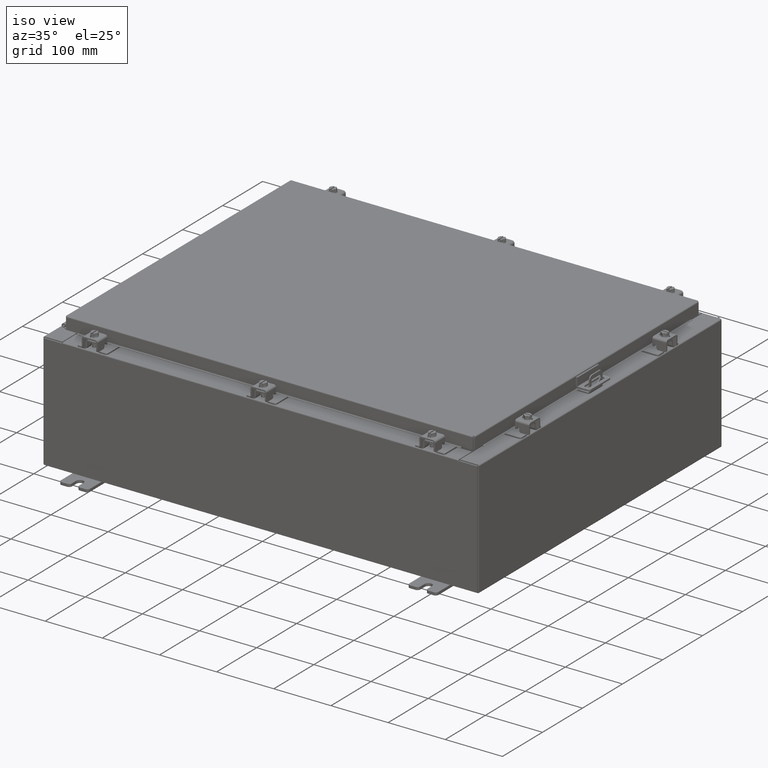
[diagram: clean part render]
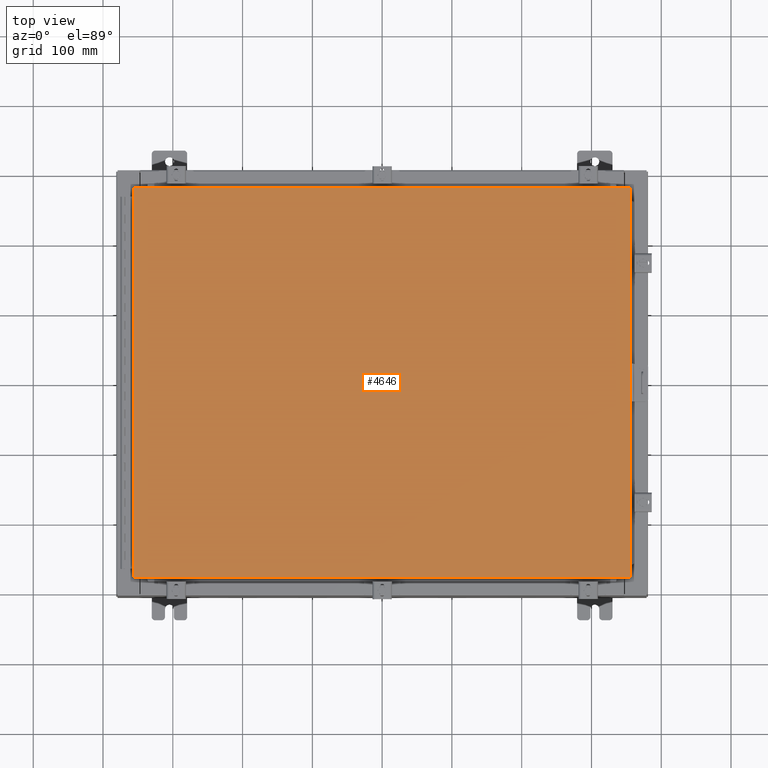
[diagram: tour spotlight — one face highlighted and labeled with its STEP entity id]
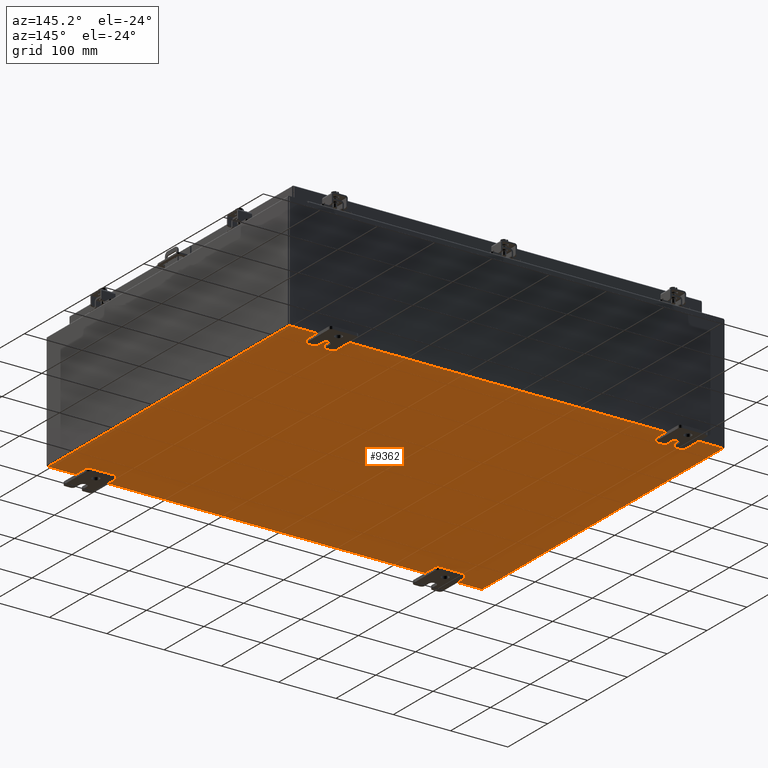
[diagram: tour spotlight — one face highlighted and labeled with its STEP entity id]
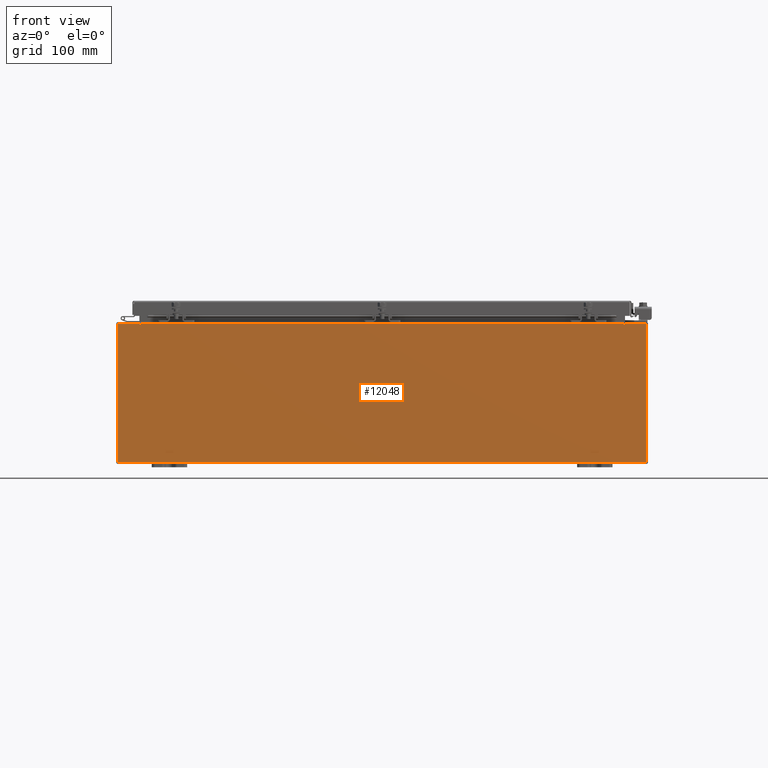
[diagram: tour spotlight — one face highlighted and labeled with its STEP entity id]
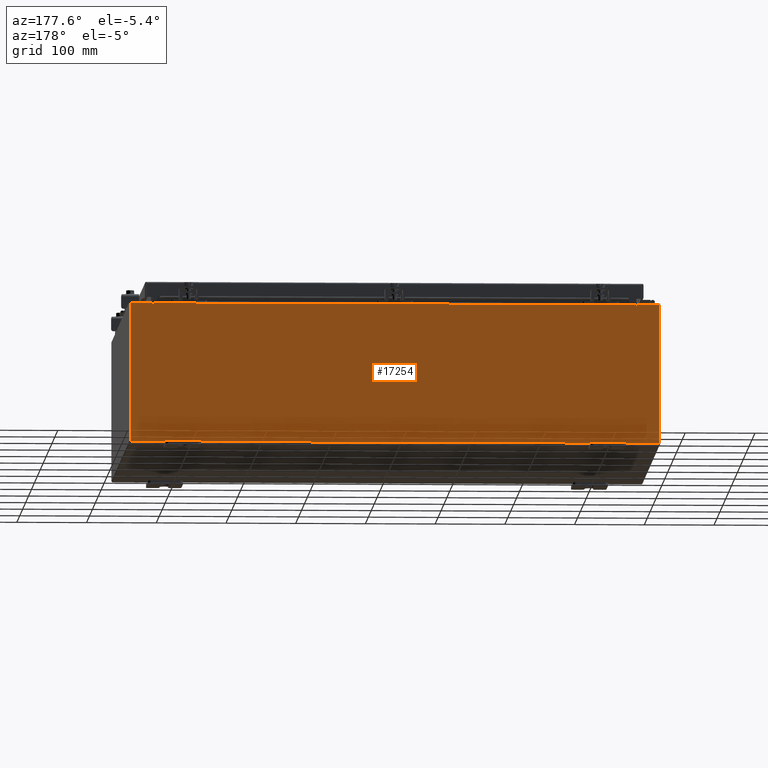
[diagram: tour spotlight — one face highlighted and labeled with its STEP entity id]
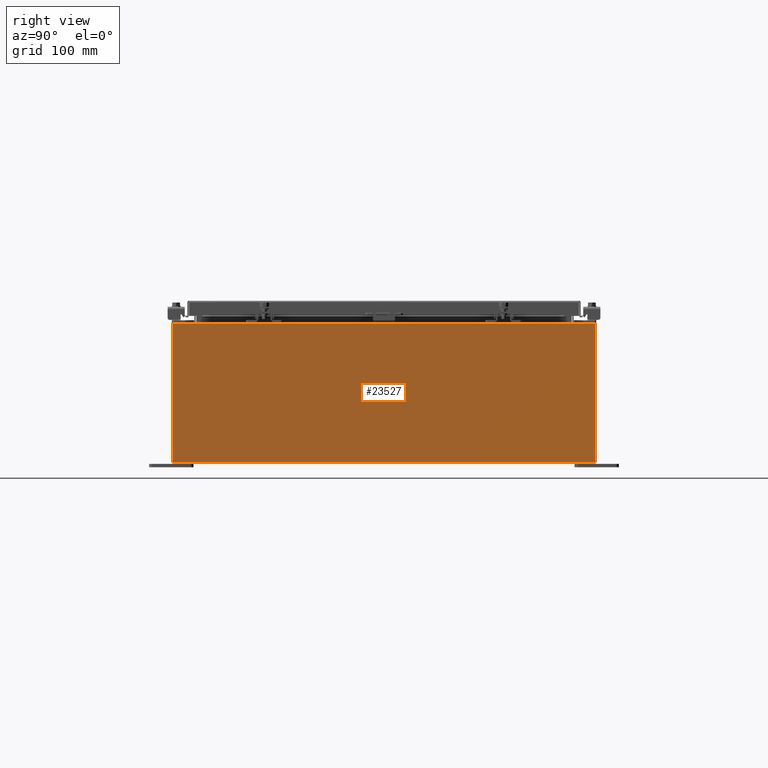
[diagram: tour spotlight — one face highlighted and labeled with its STEP entity id]
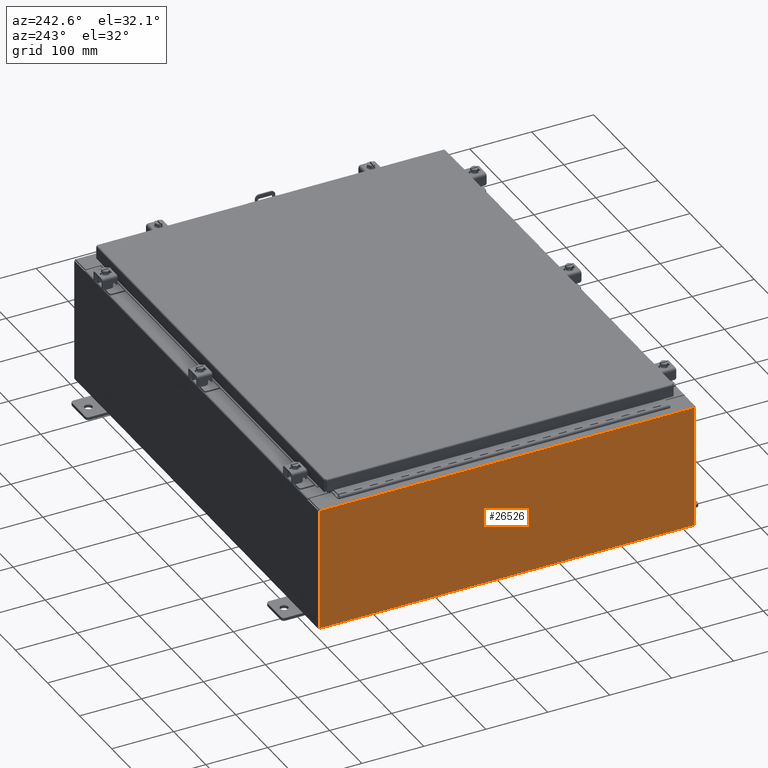
[diagram: tour spotlight — one face highlighted and labeled with its STEP entity id]
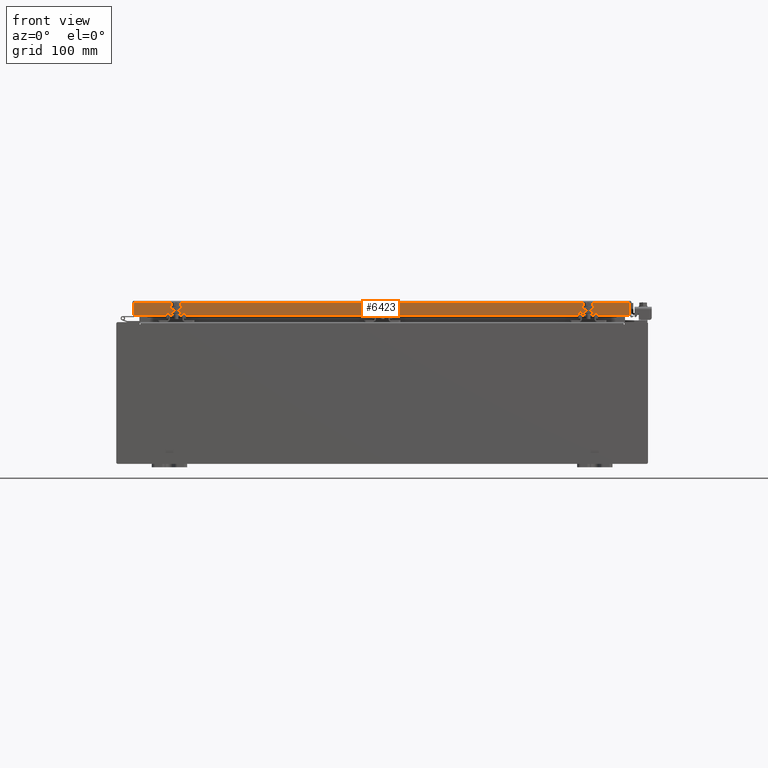
[diagram: tour spotlight — one face highlighted and labeled with its STEP entity id]
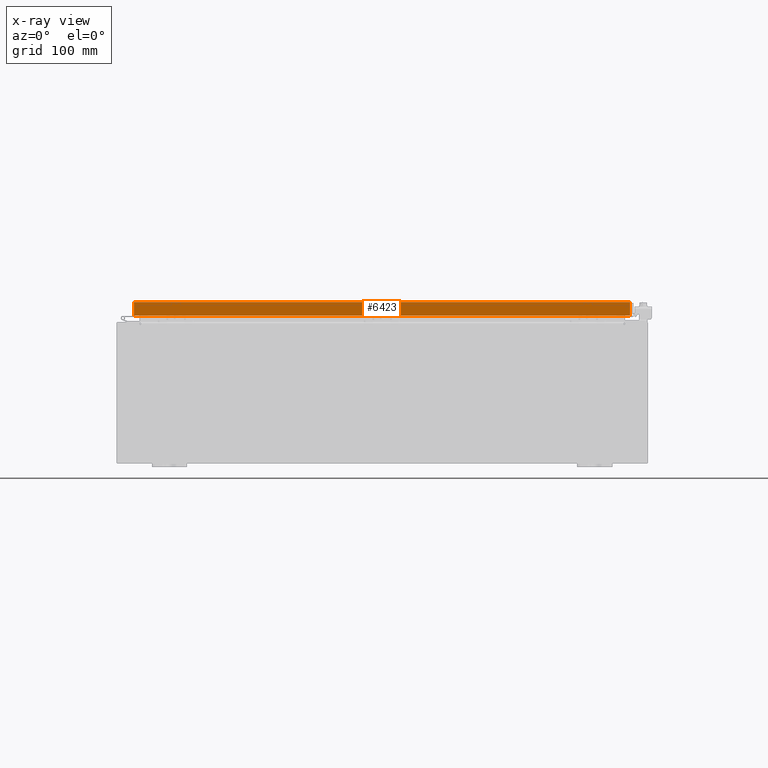
[diagram: x-ray of the same camera — body ghosted, this tour face saturated]
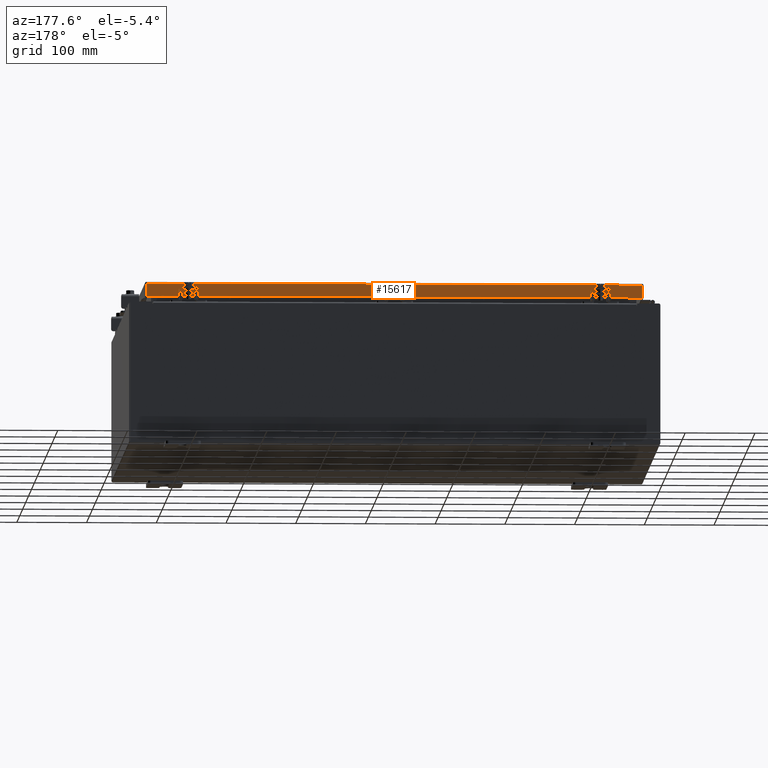
[diagram: tour spotlight — one face highlighted and labeled with its STEP entity id]
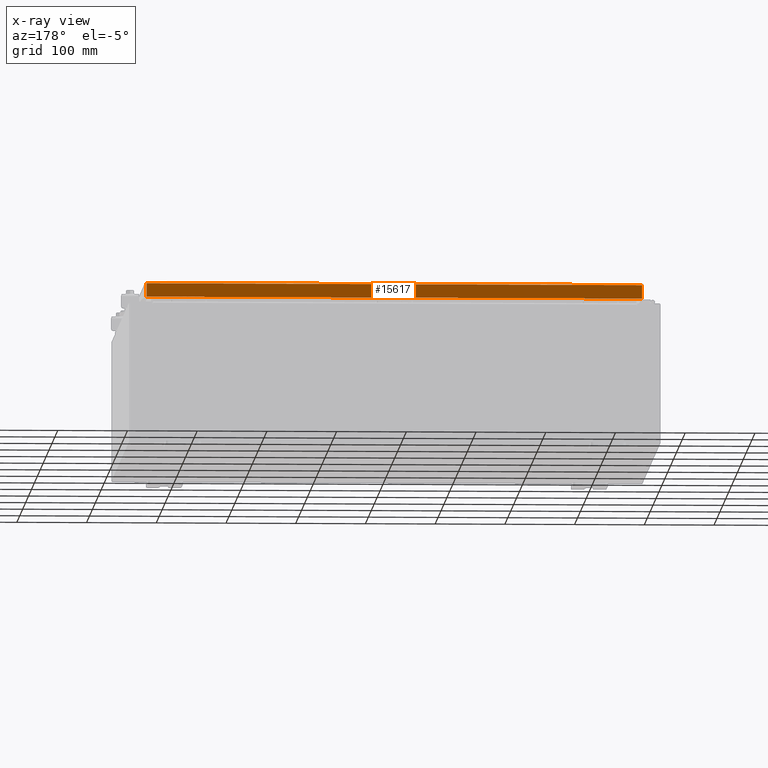
[diagram: x-ray of the same camera — body ghosted, this tour face saturated]
A machine part: a face-by-face anatomy tour. The part has 1943 B-rep faces; the first image is the clean iso view, then the 8 largest visible faces are spotlighted one at a time (largest first), each with its STEP entity span.

Face 1 — top view, entity #4646. In plain terms, the highlighted planar face has unit normal (0, 0, -1).
Definition (entity closure, byte-faithful):
#333 = LINE ( 'NONE', #10665, #6224 ) ;
#2515 = LINE ( 'NONE', #25791, #15040 ) ;
#2560 = EDGE_LOOP ( 'NONE', ( #16162, #28033, #25685, #13990 ) ) ;
#3342 = DIRECTION ( 'NONE',  ( -1.000000000000000000, -0.0000000000000000000, -0.0000000000000000000 ) ) ;
#4220 = VECTOR ( 'NONE', #13143, 39.37007874015748100 ) ;
#4319 = VERTEX_POINT ( 'NONE', #9664 ) ;
#4646 = ADVANCED_FACE ( 'NONE', ( #15226 ), #25495, .F. ) ;
#4715 = EDGE_CURVE ( 'NONE', #15245, #25922, #333, .T. ) ;
#6224 = VECTOR ( 'NONE', #3342, 39.37007874015748100 ) ;
#9664 = CARTESIAN_POINT ( 'NONE',  ( 13.99030000000000100, -11.00630000000000000, -2.048885995248197400E-016 ) ) ;
#10665 = CARTESIAN_POINT ( 'NONE',  ( 13.99030000000000100, 11.00630000000000000, -1.297627796990525000E-015 ) ) ;
#10729 = DIRECTION ( 'NONE',  ( 1.000000000000000000, -0.0000000000000000000, -0.0000000000000000000 ) ) ;
#12890 = VECTOR ( 'NONE', #29164, 39.37007874015748100 ) ;
#13143 = DIRECTION ( 'NONE',  ( 0.0000000000000000000, 1.000000000000000000, 0.0000000000000000000 ) ) ;
#13990 = ORIENTED_EDGE ( 'NONE', *, *, #14964, .T. ) ;
#14117 = CARTESIAN_POINT ( 'NONE',  ( -13.99029999999999800, 11.00630000000000100, -2.048885995248197400E-016 ) ) ;
#14964 = EDGE_CURVE ( 'NONE', #25922, #16980, #19523, .T. ) ;
#15040 = VECTOR ( 'NONE', #10729, 39.37007874015748100 ) ;
#15226 = FACE_OUTER_BOUND ( 'NONE', #2560, .T. ) ;
#15245 = VERTEX_POINT ( 'NONE', #27621 ) ;
#16055 = AXIS2_PLACEMENT_3D ( 'NONE', #27072, #24962, #24844 ) ;
#16162 = ORIENTED_EDGE ( 'NONE', *, *, #17685, .T. ) ;
#16980 = VERTEX_POINT ( 'NONE', #22419 ) ;
#17685 = EDGE_CURVE ( 'NONE', #16980, #4319, #2515, .T. ) ;
#18301 = LINE ( 'NONE', #25766, #4220 ) ;
#19523 = LINE ( 'NONE', #14117, #12890 ) ;
#22419 = CARTESIAN_POINT ( 'NONE',  ( -13.99029999999999600, -11.00630000000000100, -1.340312921891529000E-015 ) ) ;
#24844 = DIRECTION ( 'NONE',  ( -1.000000000000000000, 0.0000000000000000000, -0.0000000000000000000 ) ) ;
#24962 = DIRECTION ( 'NONE',  ( 0.0000000000000000000, 0.0000000000000000000, -1.000000000000000000 ) ) ;
#25495 = PLANE ( 'NONE',  #16055 ) ;
#25685 = ORIENTED_EDGE ( 'NONE', *, *, #4715, .T. ) ;
#25766 = CARTESIAN_POINT ( 'NONE',  ( 13.99030000000000100, -11.00630000000000000, -2.048885995248197400E-016 ) ) ;
#25791 = CARTESIAN_POINT ( 'NONE',  ( -13.99029999999999200, -11.00630000000000100, -1.348849946871729900E-015 ) ) ;
#25922 = VERTEX_POINT ( 'NONE', #30601 ) ;
#27072 = CARTESIAN_POINT ( 'NONE',  ( 0.0000000000000000000, 0.0000000000000000000, 0.0000000000000000000 ) ) ;
#27621 = CARTESIAN_POINT ( 'NONE',  ( 13.99030000000000100, 11.00630000000000000, -1.297627796990525000E-015 ) ) ;
#28033 = ORIENTED_EDGE ( 'NONE', *, *, #30409, .T. ) ;
#29164 = DIRECTION ( 'NONE',  ( 0.0000000000000000000, -1.000000000000000000, 0.0000000000000000000 ) ) ;
#30409 = EDGE_CURVE ( 'NONE', #4319, #15245, #18301, .T. ) ;
#30601 = CARTESIAN_POINT ( 'NONE',  ( -13.99029999999999800, 11.00630000000000100, -2.048885995248197400E-016 ) ) ;

Face 2 — auxiliary view, entity #9362. In plain terms, the highlighted planar face has unit normal (0, 0, -1).
Definition (entity closure, byte-faithful):
#228 = VECTOR ( 'NONE', #2615, 39.37007874015748100 ) ;
#672 = DIRECTION ( 'NONE',  ( -0.0000000000000000000, -1.000000000000000000, -0.0000000000000000000 ) ) ;
#1206 = CARTESIAN_POINT ( 'NONE',  ( -14.91230000000000000, 11.92529999999999800, -0.07470000000000000300 ) ) ;
#1933 = DIRECTION ( 'NONE',  ( -1.000000000000000000, 0.0000000000000000000, -0.0000000000000000000 ) ) ;
#2615 = DIRECTION ( 'NONE',  ( 1.000000000000000000, 0.0000000000000000000, 0.0000000000000000000 ) ) ;
#5251 = EDGE_LOOP ( 'NONE', ( #22593, #8593, #11767, #19054 ) ) ;
#5947 = VECTOR ( 'NONE', #672, 39.37007874015748100 ) ;
#6584 = EDGE_CURVE ( 'NONE', #26088, #21771, #27745, .T. ) ;
#6895 = LINE ( 'NONE', #17584, #228 ) ;
#8593 = ORIENTED_EDGE ( 'NONE', *, *, #22448, .T. ) ;
#9362 = ADVANCED_FACE ( 'NONE', ( #15523 ), #9386, .T. ) ;
#9386 = PLANE ( 'NONE',  #22096 ) ;
#11242 = DIRECTION ( 'NONE',  ( -0.0000000000000000000, 1.000000000000000000, -0.0000000000000000000 ) ) ;
#11767 = ORIENTED_EDGE ( 'NONE', *, *, #6584, .F. ) ;
#13016 = EDGE_CURVE ( 'NONE', #26088, #22585, #24380, .T. ) ;
#13490 = DIRECTION ( 'NONE',  ( -1.000000000000000000, -0.0000000000000000000, -0.0000000000000000000 ) ) ;
#13532 = CARTESIAN_POINT ( 'NONE',  ( -15.00000000000000000, 11.92529999999999800, -0.07470000000000000300 ) ) ;
#15523 = FACE_OUTER_BOUND ( 'NONE', #5251, .T. ) ;
#16903 = DIRECTION ( 'NONE',  ( 0.0000000000000000000, 0.0000000000000000000, -1.000000000000000000 ) ) ;
#17584 = CARTESIAN_POINT ( 'NONE',  ( -15.00000000000000000, -11.92530000000000400, -0.07470000000000000300 ) ) ;
#18162 = CARTESIAN_POINT ( 'NONE',  ( 14.91230000000000000, 11.92529999999999800, -0.07469999999999994700 ) ) ;
#19054 = ORIENTED_EDGE ( 'NONE', *, *, #13016, .T. ) ;
#21231 = CARTESIAN_POINT ( 'NONE',  ( -14.91230000000000000, -11.92530000000000400, -0.07469999999999994700 ) ) ;
#21703 = CARTESIAN_POINT ( 'NONE',  ( 14.91230000000000000, 11.92529999999999600, -0.07469999999999994700 ) ) ;
#21771 = VERTEX_POINT ( 'NONE', #1206 ) ;
#21821 = VECTOR ( 'NONE', #13490, 39.37007874015748100 ) ;
#22096 = AXIS2_PLACEMENT_3D ( 'NONE', #32026, #16903, #1933 ) ;
#22119 = EDGE_CURVE ( 'NONE', #23726, #22585, #6895, .T. ) ;
#22448 = EDGE_CURVE ( 'NONE', #23726, #21771, #31638, .T. ) ;
#22585 = VERTEX_POINT ( 'NONE', #26841 ) ;
#22593 = ORIENTED_EDGE ( 'NONE', *, *, #22119, .F. ) ;
#23726 = VERTEX_POINT ( 'NONE', #24449 ) ;
#24380 = LINE ( 'NONE', #18162, #5947 ) ;
#24449 = CARTESIAN_POINT ( 'NONE',  ( -14.91230000000000000, -11.92530000000000000, -0.07469999999999994700 ) ) ;
#26088 = VERTEX_POINT ( 'NONE', #21703 ) ;
#26841 = CARTESIAN_POINT ( 'NONE',  ( 14.91230000000000000, -11.92530000000000400, -0.07470000000000000300 ) ) ;
#27745 = LINE ( 'NONE', #13532, #21821 ) ;
#30841 = VECTOR ( 'NONE', #11242, 39.37007874015748100 ) ;
#31638 = LINE ( 'NONE', #21231, #30841 ) ;
#32026 = CARTESIAN_POINT ( 'NONE',  ( 0.0000000000000000000, 0.0000000000000000000, -0.07470000000000000300 ) ) ;

Face 3 — front view, entity #12048. In plain terms, the highlighted planar face has unit normal (-0, 1, -0).
Definition (entity closure, byte-faithful):
#814 = VERTEX_POINT ( 'NONE', #13122 ) ;
#927 = EDGE_CURVE ( 'NONE', #19227, #814, #16948, .T. ) ;
#1251 = LINE ( 'NONE', #2341, #20466 ) ;
#1919 = DIRECTION ( 'NONE',  ( 0.0000000000000000000, -0.0000000000000000000, -1.000000000000000000 ) ) ;
#2200 = CARTESIAN_POINT ( 'NONE',  ( 14.92530000000000200, 0.0000000000000000000, -3.925299999999999600 ) ) ;
#2263 = VERTEX_POINT ( 'NONE', #28270 ) ;
#2341 = CARTESIAN_POINT ( 'NONE',  ( 13.63720000000000400, 0.0000000000000000000, 0.0000000000000000000 ) ) ;
#2416 = ORIENTED_EDGE ( 'NONE', *, *, #16329, .T. ) ;
#2781 = EDGE_CURVE ( 'NONE', #12664, #5394, #1251, .T. ) ;
#3201 = FACE_OUTER_BOUND ( 'NONE', #31842, .T. ) ;
#4543 = VECTOR ( 'NONE', #8196, 39.37007874015748100 ) ;
#5394 = VERTEX_POINT ( 'NONE', #6042 ) ;
#5985 = VERTEX_POINT ( 'NONE', #32070 ) ;
#6042 = CARTESIAN_POINT ( 'NONE',  ( 13.63720000000000400, 0.0000000000000000000, 3.912299999999999700 ) ) ;
#6082 = CARTESIAN_POINT ( 'NONE',  ( 13.67455000000000200, 0.0000000000000000000, 3.874949999999999700 ) ) ;
#6448 = LINE ( 'NONE', #11833, #18969 ) ;
#7652 = EDGE_CURVE ( 'NONE', #5985, #8405, #12507, .T. ) ;
#7840 = AXIS2_PLACEMENT_3D ( 'NONE', #9521, #27099, #12046 ) ;
#8196 = DIRECTION ( 'NONE',  ( 1.000000000000000000, 0.0000000000000000000, 0.0000000000000000000 ) ) ;
#8405 = VERTEX_POINT ( 'NONE', #15595 ) ;
#8420 = ORIENTED_EDGE ( 'NONE', *, *, #19274, .F. ) ;
#9165 = EDGE_CURVE ( 'NONE', #12242, #19227, #9275, .T. ) ;
#9275 = LINE ( 'NONE', #31264, #21051 ) ;
#9372 = CARTESIAN_POINT ( 'NONE',  ( 0.0000000000000000000, 0.0000000000000000000, 0.0000000000000000000 ) ) ;
#9521 = CARTESIAN_POINT ( 'NONE',  ( 13.65587500000000200, 0.0000000000000000000, 3.874949999999999700 ) ) ;
#9544 = VECTOR ( 'NONE', #30337, 39.37007874015748100 ) ;
#10242 = CARTESIAN_POINT ( 'NONE',  ( 13.67455000000000400, 0.0000000000000000000, 3.925299999999999600 ) ) ;
#10415 = CARTESIAN_POINT ( 'NONE',  ( -13.63719999999999600, -0.0000000000000000000, 0.0000000000000000000 ) ) ;
#10770 = LINE ( 'NONE', #27913, #24138 ) ;
#10909 = DIRECTION ( 'NONE',  ( -4.340572780400004900E-014, 0.0000000000000000000, -1.000000000000000000 ) ) ;
#11587 = VECTOR ( 'NONE', #10909, 39.37007874015748100 ) ;
#11675 = VERTEX_POINT ( 'NONE', #2200 ) ;
#11833 = CARTESIAN_POINT ( 'NONE',  ( 14.92530000000000200, 0.0000000000000000000, 3.925299999999999600 ) ) ;
#12046 = DIRECTION ( 'NONE',  ( 0.0000000000000000000, 0.0000000000000000000, -1.000000000000000000 ) ) ;
#12048 = ADVANCED_FACE ( 'NONE', ( #3201 ), #21904, .F. ) ;
#12242 = VERTEX_POINT ( 'NONE', #30246 ) ;
#12380 = AXIS2_PLACEMENT_3D ( 'NONE', #30435, #30240, #29926 ) ;
#12507 = CIRCLE ( 'NONE', #12380, 0.01867499999999949400 ) ;
#12664 = VERTEX_POINT ( 'NONE', #24163 ) ;
#12869 = DIRECTION ( 'NONE',  ( 0.0000000000000000000, 0.0000000000000000000, 1.000000000000000000 ) ) ;
#12944 = DIRECTION ( 'NONE',  ( 0.0000000000000000000, 0.0000000000000000000, -1.000000000000000000 ) ) ;
#13113 = VECTOR ( 'NONE', #21860, 39.37007874015748100 ) ;
#13122 = CARTESIAN_POINT ( 'NONE',  ( -13.67454999999999500, 0.0000000000000000000, 3.925299999999999600 ) ) ;
#13185 = LINE ( 'NONE', #28507, #11587 ) ;
#14379 = ORIENTED_EDGE ( 'NONE', *, *, #9165, .T. ) ;
#14388 = DIRECTION ( 'NONE',  ( 0.0000000000000000000, 0.0000000000000000000, -1.000000000000000000 ) ) ;
#14528 = VERTEX_POINT ( 'NONE', #10242 ) ;
#14663 = ORIENTED_EDGE ( 'NONE', *, *, #17100, .F. ) ;
#15595 = CARTESIAN_POINT ( 'NONE',  ( -13.67454999999999500, 0.0000000000000000000, 3.874949999999999700 ) ) ;
#16025 = VERTEX_POINT ( 'NONE', #28646 ) ;
#16329 = EDGE_CURVE ( 'NONE', #11675, #12242, #19442, .T. ) ;
#16579 = EDGE_CURVE ( 'NONE', #14528, #24840, #13185, .T. ) ;
#16885 = DIRECTION ( 'NONE',  ( 0.0000000000000000000, -1.000000000000000000, 0.0000000000000000000 ) ) ;
#16948 = LINE ( 'NONE', #32163, #9544 ) ;
#17100 = EDGE_CURVE ( 'NONE', #8405, #814, #10770, .T. ) ;
#17337 = ORIENTED_EDGE ( 'NONE', *, *, #7652, .F. ) ;
#17533 = EDGE_CURVE ( 'NONE', #16025, #5394, #26477, .T. ) ;
#17537 = EDGE_CURVE ( 'NONE', #2263, #11675, #6448, .T. ) ;
#18651 = VECTOR ( 'NONE', #29955, 39.37007874015748100 ) ;
#18698 = DIRECTION ( 'NONE',  ( -0.0000000000000000000, -0.0000000000000000000, 1.000000000000000000 ) ) ;
#18969 = VECTOR ( 'NONE', #14388, 39.37007874015748100 ) ;
#19227 = VERTEX_POINT ( 'NONE', #22721 ) ;
#19274 = EDGE_CURVE ( 'NONE', #16025, #5985, #31866, .T. ) ;
#19393 = ORIENTED_EDGE ( 'NONE', *, *, #26392, .F. ) ;
#19442 = LINE ( 'NONE', #32458, #18651 ) ;
#20466 = VECTOR ( 'NONE', #32522, 39.37007874015748100 ) ;
#21051 = VECTOR ( 'NONE', #18698, 39.37007874015748100 ) ;
#21211 = ORIENTED_EDGE ( 'NONE', *, *, #16579, .F. ) ;
#21860 = DIRECTION ( 'NONE',  ( 1.000000000000000000, 0.0000000000000000000, 0.0000000000000000000 ) ) ;
#21904 = PLANE ( 'NONE',  #26387 ) ;
#21962 = ORIENTED_EDGE ( 'NONE', *, *, #17533, .T. ) ;
#22272 = EDGE_CURVE ( 'NONE', #14528, #2263, #22982, .T. ) ;
#22721 = CARTESIAN_POINT ( 'NONE',  ( -14.92529999999999800, 0.0000000000000000000, 3.925299999999999600 ) ) ;
#22982 = LINE ( 'NONE', #23197, #4543 ) ;
#23197 = CARTESIAN_POINT ( 'NONE',  ( -14.92529999999999800, 0.0000000000000000000, 3.925299999999999600 ) ) ;
#23267 = ORIENTED_EDGE ( 'NONE', *, *, #22272, .T. ) ;
#23580 = VECTOR ( 'NONE', #12944, 39.37007874015748100 ) ;
#23994 = ORIENTED_EDGE ( 'NONE', *, *, #17537, .T. ) ;
#24138 = VECTOR ( 'NONE', #12869, 39.37007874015748100 ) ;
#24163 = CARTESIAN_POINT ( 'NONE',  ( 13.63720000000000400, 0.0000000000000000000, 3.874949999999999700 ) ) ;
#24840 = VERTEX_POINT ( 'NONE', #6082 ) ;
#26387 = AXIS2_PLACEMENT_3D ( 'NONE', #9372, #16885, #1919 ) ;
#26392 = EDGE_CURVE ( 'NONE', #24840, #12664, #29830, .T. ) ;
#26477 = LINE ( 'NONE', #31845, #13113 ) ;
#26689 = ORIENTED_EDGE ( 'NONE', *, *, #927, .T. ) ;
#27099 = DIRECTION ( 'NONE',  ( -0.0000000000000000000, 1.000000000000000000, -0.0000000000000000000 ) ) ;
#27913 = CARTESIAN_POINT ( 'NONE',  ( -13.67454999999999500, -0.0000000000000000000, 0.0000000000000000000 ) ) ;
#28270 = CARTESIAN_POINT ( 'NONE',  ( 14.92530000000000200, 0.0000000000000000000, 3.925299999999999600 ) ) ;
#28507 = CARTESIAN_POINT ( 'NONE',  ( 13.67454999999983300, -0.0000000000000000000, -5.935537951421816200E-013 ) ) ;
#28646 = CARTESIAN_POINT ( 'NONE',  ( -13.63719999999999600, 1.024442997624098700E-016, 3.912299999999999700 ) ) ;
#29473 = ORIENTED_EDGE ( 'NONE', *, *, #2781, .F. ) ;
#29830 = CIRCLE ( 'NONE', #7840, 0.01867499999999949400 ) ;
#29926 = DIRECTION ( 'NONE',  ( 0.0000000000000000000, 0.0000000000000000000, -1.000000000000000000 ) ) ;
#29955 = DIRECTION ( 'NONE',  ( -1.000000000000000000, -0.0000000000000000000, -0.0000000000000000000 ) ) ;
#30240 = DIRECTION ( 'NONE',  ( -0.0000000000000000000, 1.000000000000000000, -0.0000000000000000000 ) ) ;
#30246 = CARTESIAN_POINT ( 'NONE',  ( -14.92529999999999800, 0.0000000000000000000, -3.925299999999999600 ) ) ;
#30337 = DIRECTION ( 'NONE',  ( 1.000000000000000000, 0.0000000000000000000, 0.0000000000000000000 ) ) ;
#30435 = CARTESIAN_POINT ( 'NONE',  ( -13.65587499999999600, 0.0000000000000000000, 3.874949999999999700 ) ) ;
#31264 = CARTESIAN_POINT ( 'NONE',  ( -14.92529999999999800, 0.0000000000000000000, 3.925299999999999600 ) ) ;
#31842 = EDGE_LOOP ( 'NONE', ( #14663, #17337, #8420, #21962, #29473, #19393, #21211, #23267, #23994, #2416, #14379, #26689 ) ) ;
#31845 = CARTESIAN_POINT ( 'NONE',  ( -13.63719999999999800, 1.024442997624098700E-016, 3.912299999999999700 ) ) ;
#31866 = LINE ( 'NONE', #10415, #23580 ) ;
#32070 = CARTESIAN_POINT ( 'NONE',  ( -13.63719999999999600, -0.0000000000000000000, 3.874949999999999700 ) ) ;
#32163 = CARTESIAN_POINT ( 'NONE',  ( -14.92529999999999800, 0.0000000000000000000, 3.925299999999999600 ) ) ;
#32458 = CARTESIAN_POINT ( 'NONE',  ( -14.92529999999999800, 0.0000000000000000000, -3.925299999999999600 ) ) ;
#32522 = DIRECTION ( 'NONE',  ( 0.0000000000000000000, 0.0000000000000000000, 1.000000000000000000 ) ) ;

Face 4 — auxiliary view, entity #17254. In plain terms, the highlighted planar face has unit normal (0, -1, 0).
Definition (entity closure, byte-faithful):
#1530 = LINE ( 'NONE', #12909, #11361 ) ;
#2064 = ORIENTED_EDGE ( 'NONE', *, *, #26640, .T. ) ;
#2472 = DIRECTION ( 'NONE',  ( -1.000000000000000000, -0.0000000000000000000, -0.0000000000000000000 ) ) ;
#2600 = EDGE_CURVE ( 'NONE', #27014, #2655, #25980, .T. ) ;
#2655 = VERTEX_POINT ( 'NONE', #20212 ) ;
#3397 = CARTESIAN_POINT ( 'NONE',  ( 13.63720000000000400, 0.0000000000000000000, 0.0000000000000000000 ) ) ;
#3432 = DIRECTION ( 'NONE',  ( 0.0000000000000000000, -1.000000000000000000, 0.0000000000000000000 ) ) ;
#3822 = VERTEX_POINT ( 'NONE', #30225 ) ;
#3849 = VECTOR ( 'NONE', #31290, 39.37007874015748100 ) ;
#3901 = LINE ( 'NONE', #10347, #17178 ) ;
#4073 = VERTEX_POINT ( 'NONE', #26696 ) ;
#4563 = VECTOR ( 'NONE', #24373, 39.37007874015748100 ) ;
#5375 = EDGE_CURVE ( 'NONE', #3822, #22118, #10484, .T. ) ;
#5415 = DIRECTION ( 'NONE',  ( 0.0000000000000000000, 0.0000000000000000000, -1.000000000000000000 ) ) ;
#5634 = VERTEX_POINT ( 'NONE', #32386 ) ;
#5680 = EDGE_CURVE ( 'NONE', #28833, #4073, #21081, .T. ) ;
#5797 = CARTESIAN_POINT ( 'NONE',  ( -13.63719999999999600, -0.0000000000000000000, 0.0000000000000000000 ) ) ;
#5967 = VECTOR ( 'NONE', #31006, 39.37007874015748100 ) ;
#6032 = CARTESIAN_POINT ( 'NONE',  ( -13.63719999999999600, 1.024442997624098700E-016, 3.912299999999999700 ) ) ;
#6238 = ORIENTED_EDGE ( 'NONE', *, *, #8088, .F. ) ;
#6724 = VERTEX_POINT ( 'NONE', #9431 ) ;
#6837 = CARTESIAN_POINT ( 'NONE',  ( -13.63719999999999800, 1.024442997624098700E-016, 3.912299999999999700 ) ) ;
#6854 = CARTESIAN_POINT ( 'NONE',  ( 13.63720000000000400, 0.0000000000000000000, 3.874949999999999700 ) ) ;
#7354 = EDGE_CURVE ( 'NONE', #22118, #27014, #29668, .T. ) ;
#7526 = VECTOR ( 'NONE', #2472, 39.37007874015748100 ) ;
#7868 = DIRECTION ( 'NONE',  ( 1.000000000000000000, 0.0000000000000000000, 0.0000000000000000000 ) ) ;
#7899 = VERTEX_POINT ( 'NONE', #18019 ) ;
#8088 = EDGE_CURVE ( 'NONE', #13630, #7899, #26646, .T. ) ;
#8369 = PLANE ( 'NONE',  #23961 ) ;
#9376 = CARTESIAN_POINT ( 'NONE',  ( -13.65587499999999600, 0.0000000000000000000, 3.874949999999999700 ) ) ;
#9431 = CARTESIAN_POINT ( 'NONE',  ( -14.92529999999999800, 0.0000000000000000000, -3.925299999999999600 ) ) ;
#9562 = EDGE_CURVE ( 'NONE', #15014, #15130, #18240, .T. ) ;
#10068 = CARTESIAN_POINT ( 'NONE',  ( 13.67455000000000200, 0.0000000000000000000, 3.874949999999999700 ) ) ;
#10347 = CARTESIAN_POINT ( 'NONE',  ( -14.92529999999999800, 0.0000000000000000000, 3.925299999999999600 ) ) ;
#10484 = LINE ( 'NONE', #26341, #3849 ) ;
#10920 = CARTESIAN_POINT ( 'NONE',  ( -14.92529999999999800, 0.0000000000000000000, 3.925299999999999600 ) ) ;
#11306 = AXIS2_PLACEMENT_3D ( 'NONE', #17340, #17232, #16894 ) ;
#11361 = VECTOR ( 'NONE', #7868, 39.37007874015748100 ) ;
#11774 = CARTESIAN_POINT ( 'NONE',  ( 14.92530000000000200, 0.0000000000000000000, 3.925299999999999600 ) ) ;
#11902 = DIRECTION ( 'NONE',  ( 0.0000000000000000000, 0.0000000000000000000, -1.000000000000000000 ) ) ;
#12008 = LINE ( 'NONE', #6837, #4563 ) ;
#12842 = AXIS2_PLACEMENT_3D ( 'NONE', #9376, #26968, #11902 ) ;
#12909 = CARTESIAN_POINT ( 'NONE',  ( -14.92529999999999800, 0.0000000000000000000, 3.925299999999999600 ) ) ;
#13139 = ORIENTED_EDGE ( 'NONE', *, *, #5375, .F. ) ;
#13530 = ORIENTED_EDGE ( 'NONE', *, *, #31097, .T. ) ;
#13630 = VERTEX_POINT ( 'NONE', #6032 ) ;
#13916 = ORIENTED_EDGE ( 'NONE', *, *, #30498, .T. ) ;
#14100 = ORIENTED_EDGE ( 'NONE', *, *, #14540, .T. ) ;
#14205 = LINE ( 'NONE', #20009, #7526 ) ;
#14540 = EDGE_CURVE ( 'NONE', #3822, #15014, #3901, .T. ) ;
#15014 = VERTEX_POINT ( 'NONE', #11774 ) ;
#15130 = VERTEX_POINT ( 'NONE', #32318 ) ;
#16894 = DIRECTION ( 'NONE',  ( 0.0000000000000000000, 0.0000000000000000000, -1.000000000000000000 ) ) ;
#17178 = VECTOR ( 'NONE', #27939, 39.37007874015748100 ) ;
#17232 = DIRECTION ( 'NONE',  ( -0.0000000000000000000, 1.000000000000000000, -0.0000000000000000000 ) ) ;
#17254 = ADVANCED_FACE ( 'NONE', ( #26096 ), #8369, .F. ) ;
#17340 = CARTESIAN_POINT ( 'NONE',  ( 13.65587500000000200, 0.0000000000000000000, 3.874949999999999700 ) ) ;
#18019 = CARTESIAN_POINT ( 'NONE',  ( -13.63719999999999600, -0.0000000000000000000, 3.874949999999999700 ) ) ;
#18240 = LINE ( 'NONE', #19907, #30103 ) ;
#18409 = CARTESIAN_POINT ( 'NONE',  ( 0.0000000000000000000, 0.0000000000000000000, 0.0000000000000000000 ) ) ;
#18466 = DIRECTION ( 'NONE',  ( -0.0000000000000000000, -0.0000000000000000000, 1.000000000000000000 ) ) ;
#19907 = CARTESIAN_POINT ( 'NONE',  ( 14.92530000000000200, 0.0000000000000000000, 3.925299999999999600 ) ) ;
#20009 = CARTESIAN_POINT ( 'NONE',  ( -14.92529999999999800, 0.0000000000000000000, -3.925299999999999600 ) ) ;
#20147 = ORIENTED_EDGE ( 'NONE', *, *, #2600, .F. ) ;
#20212 = CARTESIAN_POINT ( 'NONE',  ( 13.63720000000000400, 0.0000000000000000000, 3.912299999999999700 ) ) ;
#20483 = CIRCLE ( 'NONE', #12842, 0.01867499999999949400 ) ;
#20854 = EDGE_LOOP ( 'NONE', ( #30433, #24570, #6238, #13530, #20147, #27202, #13139, #14100, #26688, #27341, #13916, #2064 ) ) ;
#20969 = DIRECTION ( 'NONE',  ( 0.0000000000000000000, -0.0000000000000000000, -1.000000000000000000 ) ) ;
#21081 = LINE ( 'NONE', #27400, #26994 ) ;
#21884 = VECTOR ( 'NONE', #18466, 39.37007874015748100 ) ;
#22118 = VERTEX_POINT ( 'NONE', #10068 ) ;
#22662 = DIRECTION ( 'NONE',  ( 0.0000000000000000000, 0.0000000000000000000, -1.000000000000000000 ) ) ;
#23961 = AXIS2_PLACEMENT_3D ( 'NONE', #18409, #3432, #20969 ) ;
#24339 = EDGE_CURVE ( 'NONE', #7899, #28833, #20483, .T. ) ;
#24373 = DIRECTION ( 'NONE',  ( 1.000000000000000000, 0.0000000000000000000, 0.0000000000000000000 ) ) ;
#24544 = EDGE_CURVE ( 'NONE', #15130, #6724, #14205, .T. ) ;
#24570 = ORIENTED_EDGE ( 'NONE', *, *, #24339, .F. ) ;
#25841 = VECTOR ( 'NONE', #5415, 39.37007874015748100 ) ;
#25980 = LINE ( 'NONE', #3397, #5967 ) ;
#26096 = FACE_OUTER_BOUND ( 'NONE', #20854, .T. ) ;
#26341 = CARTESIAN_POINT ( 'NONE',  ( 13.67454999999983300, -0.0000000000000000000, -5.935537951421816200E-013 ) ) ;
#26358 = DIRECTION ( 'NONE',  ( 0.0000000000000000000, 0.0000000000000000000, 1.000000000000000000 ) ) ;
#26640 = EDGE_CURVE ( 'NONE', #5634, #4073, #1530, .T. ) ;
#26646 = LINE ( 'NONE', #5797, #25841 ) ;
#26688 = ORIENTED_EDGE ( 'NONE', *, *, #9562, .T. ) ;
#26696 = CARTESIAN_POINT ( 'NONE',  ( -13.67454999999999500, 0.0000000000000000000, 3.925299999999999600 ) ) ;
#26968 = DIRECTION ( 'NONE',  ( -0.0000000000000000000, 1.000000000000000000, -0.0000000000000000000 ) ) ;
#26994 = VECTOR ( 'NONE', #26358, 39.37007874015748100 ) ;
#27014 = VERTEX_POINT ( 'NONE', #6854 ) ;
#27202 = ORIENTED_EDGE ( 'NONE', *, *, #7354, .F. ) ;
#27341 = ORIENTED_EDGE ( 'NONE', *, *, #24544, .T. ) ;
#27400 = CARTESIAN_POINT ( 'NONE',  ( -13.67454999999999500, -0.0000000000000000000, 0.0000000000000000000 ) ) ;
#27939 = DIRECTION ( 'NONE',  ( 1.000000000000000000, 0.0000000000000000000, 0.0000000000000000000 ) ) ;
#28568 = LINE ( 'NONE', #10920, #21884 ) ;
#28833 = VERTEX_POINT ( 'NONE', #32217 ) ;
#29668 = CIRCLE ( 'NONE', #11306, 0.01867499999999949400 ) ;
#30103 = VECTOR ( 'NONE', #22662, 39.37007874015748100 ) ;
#30225 = CARTESIAN_POINT ( 'NONE',  ( 13.67455000000000400, 0.0000000000000000000, 3.925299999999999600 ) ) ;
#30433 = ORIENTED_EDGE ( 'NONE', *, *, #5680, .F. ) ;
#30498 = EDGE_CURVE ( 'NONE', #6724, #5634, #28568, .T. ) ;
#31006 = DIRECTION ( 'NONE',  ( 0.0000000000000000000, 0.0000000000000000000, 1.000000000000000000 ) ) ;
#31097 = EDGE_CURVE ( 'NONE', #13630, #2655, #12008, .T. ) ;
#31290 = DIRECTION ( 'NONE',  ( -4.340572780400004900E-014, 0.0000000000000000000, -1.000000000000000000 ) ) ;
#32217 = CARTESIAN_POINT ( 'NONE',  ( -13.67454999999999500, 0.0000000000000000000, 3.874949999999999700 ) ) ;
#32318 = CARTESIAN_POINT ( 'NONE',  ( 14.92530000000000200, 0.0000000000000000000, -3.925299999999999600 ) ) ;
#32386 = CARTESIAN_POINT ( 'NONE',  ( -14.92529999999999800, 0.0000000000000000000, 3.925299999999999600 ) ) ;

Face 5 — right view, entity #23527. In plain terms, the highlighted planar face has unit normal (-1, 0, 0).
Definition (entity closure, byte-faithful):
#526 = VECTOR ( 'NONE', #16536, 39.37007874015748100 ) ;
#799 = LINE ( 'NONE', #22357, #11768 ) ;
#1785 = EDGE_CURVE ( 'NONE', #20191, #10632, #20531, .T. ) ;
#1936 = VECTOR ( 'NONE', #8677, 39.37007874015748100 ) ;
#2747 = ORIENTED_EDGE ( 'NONE', *, *, #1785, .T. ) ;
#4115 = ORIENTED_EDGE ( 'NONE', *, *, #4146, .F. ) ;
#4146 = EDGE_CURVE ( 'NONE', #20191, #16304, #28663, .T. ) ;
#4785 = VECTOR ( 'NONE', #7066, 39.37007874015748100 ) ;
#4792 = DIRECTION ( 'NONE',  ( -0.0000000000000000000, -1.000000000000000000, -0.0000000000000000000 ) ) ;
#7066 = DIRECTION ( 'NONE',  ( -3.584876173029202900E-015, 0.0000000000000000000, -1.000000000000000000 ) ) ;
#8677 = DIRECTION ( 'NONE',  ( -0.0000000000000000000, -1.000000000000000000, -0.0000000000000000000 ) ) ;
#8725 = CARTESIAN_POINT ( 'NONE',  ( 15.00000000000000000, 11.92529999999999600, 0.01299999999999984700 ) ) ;
#9937 = CARTESIAN_POINT ( 'NONE',  ( 15.00000000000003200, 11.92529999999999600, 7.837599999999992100 ) ) ;
#10365 = EDGE_LOOP ( 'NONE', ( #27271, #23259, #4115, #2747 ) ) ;
#10632 = VERTEX_POINT ( 'NONE', #9937 ) ;
#11292 = DIRECTION ( 'NONE',  ( 3.584876173029202900E-015, 0.0000000000000000000, 1.000000000000000000 ) ) ;
#11525 = CARTESIAN_POINT ( 'NONE',  ( 15.00000000000000000, -11.92530000000000400, 0.01299999999999984700 ) ) ;
#11768 = VECTOR ( 'NONE', #4792, 39.37007874015748100 ) ;
#16196 = CARTESIAN_POINT ( 'NONE',  ( 15.00000000000000000, 0.0000000000000000000, -5.403395625144962700E-014 ) ) ;
#16304 = VERTEX_POINT ( 'NONE', #19920 ) ;
#16536 = DIRECTION ( 'NONE',  ( 3.584876173029202900E-015, 0.0000000000000000000, 1.000000000000000000 ) ) ;
#18725 = PLANE ( 'NONE',  #19726 ) ;
#19726 = AXIS2_PLACEMENT_3D ( 'NONE', #16196, #26342, #11292 ) ;
#19920 = CARTESIAN_POINT ( 'NONE',  ( 15.00000000000000000, -11.92530000000000400, 0.01299999999999983600 ) ) ;
#20191 = VERTEX_POINT ( 'NONE', #8725 ) ;
#20531 = LINE ( 'NONE', #24201, #526 ) ;
#22129 = CARTESIAN_POINT ( 'NONE',  ( 15.00000000000000000, -11.92530000000000400, -5.403395625144962700E-014 ) ) ;
#22357 = CARTESIAN_POINT ( 'NONE',  ( 15.00000000000003200, 11.92529999999999800, 7.837599999999992100 ) ) ;
#23259 = ORIENTED_EDGE ( 'NONE', *, *, #24385, .T. ) ;
#23527 = ADVANCED_FACE ( 'NONE', ( #27655 ), #18725, .F. ) ;
#24166 = VERTEX_POINT ( 'NONE', #28628 ) ;
#24201 = CARTESIAN_POINT ( 'NONE',  ( 15.00000000000000000, 11.92529999999999800, -5.403395625144962700E-014 ) ) ;
#24385 = EDGE_CURVE ( 'NONE', #24166, #16304, #24795, .T. ) ;
#24795 = LINE ( 'NONE', #22129, #4785 ) ;
#26342 = DIRECTION ( 'NONE',  ( -1.000000000000000000, 0.0000000000000000000, 3.584876173029202900E-015 ) ) ;
#27271 = ORIENTED_EDGE ( 'NONE', *, *, #28396, .T. ) ;
#27655 = FACE_OUTER_BOUND ( 'NONE', #10365, .T. ) ;
#28396 = EDGE_CURVE ( 'NONE', #10632, #24166, #799, .T. ) ;
#28628 = CARTESIAN_POINT ( 'NONE',  ( 15.00000000000002800, -11.92530000000000400, 7.837599999999998300 ) ) ;
#28663 = LINE ( 'NONE', #11525, #1936 ) ;

Face 6 — auxiliary view, entity #26526. In plain terms, the highlighted planar face has unit normal (1, 0, 0).
Definition (entity closure, byte-faithful):
#994 = EDGE_LOOP ( 'NONE', ( #16922, #14734, #2375, #6840 ) ) ;
#2375 = ORIENTED_EDGE ( 'NONE', *, *, #28823, .F. ) ;
#2438 = VERTEX_POINT ( 'NONE', #14541 ) ;
#3601 = EDGE_CURVE ( 'NONE', #2438, #31139, #30271, .T. ) ;
#5027 = DIRECTION ( 'NONE',  ( 1.000000000000000000, 0.0000000000000000000, 3.584876173029202900E-015 ) ) ;
#5881 = VECTOR ( 'NONE', #6637, 39.37007874015748100 ) ;
#6637 = DIRECTION ( 'NONE',  ( -0.0000000000000000000, 1.000000000000000000, -0.0000000000000000000 ) ) ;
#6840 = ORIENTED_EDGE ( 'NONE', *, *, #3601, .T. ) ;
#7436 = PLANE ( 'NONE',  #28051 ) ;
#7695 = CARTESIAN_POINT ( 'NONE',  ( -15.00000000000000000, 11.92529999999999800, 0.01299999999999983600 ) ) ;
#9887 = EDGE_CURVE ( 'NONE', #32061, #23311, #15485, .T. ) ;
#10146 = CARTESIAN_POINT ( 'NONE',  ( -15.00000000000000000, -11.92530000000000400, -5.403395625144962700E-014 ) ) ;
#10373 = DIRECTION ( 'NONE',  ( -3.584876173029202900E-015, 0.0000000000000000000, 1.000000000000000000 ) ) ;
#11595 = DIRECTION ( 'NONE',  ( 0.0000000000000000000, 1.000000000000000000, 0.0000000000000000000 ) ) ;
#12536 = LINE ( 'NONE', #19110, #5881 ) ;
#14541 = CARTESIAN_POINT ( 'NONE',  ( -15.00000000000000000, -11.92530000000000000, 0.01299999999999984700 ) ) ;
#14709 = VECTOR ( 'NONE', #31228, 39.37007874015748100 ) ;
#14734 = ORIENTED_EDGE ( 'NONE', *, *, #9887, .T. ) ;
#15485 = LINE ( 'NONE', #21331, #14709 ) ;
#16059 = VECTOR ( 'NONE', #10373, 39.37007874015748100 ) ;
#16701 = CARTESIAN_POINT ( 'NONE',  ( -15.00000000000002800, -11.92530000000000400, 7.837599999999999200 ) ) ;
#16922 = ORIENTED_EDGE ( 'NONE', *, *, #28245, .T. ) ;
#19110 = CARTESIAN_POINT ( 'NONE',  ( -15.00000000000000000, 11.92529999999999800, 0.01299999999999984700 ) ) ;
#20750 = FACE_OUTER_BOUND ( 'NONE', #994, .T. ) ;
#21331 = CARTESIAN_POINT ( 'NONE',  ( -15.00000000000000000, 11.92529999999999800, -5.403395625144962700E-014 ) ) ;
#22578 = DIRECTION ( 'NONE',  ( 3.584876173029202900E-015, 0.0000000000000000000, -1.000000000000000000 ) ) ;
#23165 = LINE ( 'NONE', #16701, #29898 ) ;
#23311 = VERTEX_POINT ( 'NONE', #7695 ) ;
#24605 = CARTESIAN_POINT ( 'NONE',  ( -15.00000000000002800, -11.92530000000000000, 7.837599999999999200 ) ) ;
#24994 = CARTESIAN_POINT ( 'NONE',  ( -15.00000000000000000, 0.0000000000000000000, -5.403395625144962700E-014 ) ) ;
#26526 = ADVANCED_FACE ( 'NONE', ( #20750 ), #7436, .F. ) ;
#28051 = AXIS2_PLACEMENT_3D ( 'NONE', #24994, #5027, #22578 ) ;
#28245 = EDGE_CURVE ( 'NONE', #31139, #32061, #23165, .T. ) ;
#28823 = EDGE_CURVE ( 'NONE', #2438, #23311, #12536, .T. ) ;
#29850 = CARTESIAN_POINT ( 'NONE',  ( -15.00000000000002800, 11.92529999999999800, 7.837599999999999200 ) ) ;
#29898 = VECTOR ( 'NONE', #11595, 39.37007874015748100 ) ;
#30271 = LINE ( 'NONE', #10146, #16059 ) ;
#31139 = VERTEX_POINT ( 'NONE', #24605 ) ;
#31228 = DIRECTION ( 'NONE',  ( 3.584876173029202900E-015, 0.0000000000000000000, -1.000000000000000000 ) ) ;
#32061 = VERTEX_POINT ( 'NONE', #29850 ) ;

Face 7 — front view, entity #6423. An x-ray twin of the same camera follows (body ghosted, this face saturated) — the face is partly hidden behind the body. In plain terms, the highlighted planar face has unit normal (-0, 1, -0).
Definition (entity closure, byte-faithful):
#1064 = CARTESIAN_POINT ( 'NONE',  ( -13.98915786437626700, -11.09400000000000100, 6.280614401424472000E-014 ) ) ;
#1550 = CARTESIAN_POINT ( 'NONE',  ( 13.98915786437627100, -11.09400000000000700, -0.8499999999999996400 ) ) ;
#1688 = CARTESIAN_POINT ( 'NONE',  ( -13.98915786437626900, -11.09400000000000700, -0.8499999999999963100 ) ) ;
#2097 = VERTEX_POINT ( 'NONE', #9230 ) ;
#3108 = CARTESIAN_POINT ( 'NONE',  ( -13.23915786437626900, -11.09400000000000300, -0.8500000000000002000 ) ) ;
#4130 = VECTOR ( 'NONE', #23997, 39.37007874015748100 ) ;
#4712 = CARTESIAN_POINT ( 'NONE',  ( 13.98915786437627100, -11.09400000000000100, -0.07469999999999958600 ) ) ;
#4987 = CARTESIAN_POINT ( 'NONE',  ( 14.07800000000000300, -11.09400000000000700, -0.8499999999999996400 ) ) ;
#5519 = ORIENTED_EDGE ( 'NONE', *, *, #20891, .F. ) ;
#5652 = ORIENTED_EDGE ( 'NONE', *, *, #31837, .F. ) ;
#6110 = DIRECTION ( 'NONE',  ( 0.0000000000000000000, -5.637761885544720300E-015, -1.000000000000000000 ) ) ;
#6423 = ADVANCED_FACE ( 'NONE', ( #6518 ), #19006, .F. ) ;
#6518 = FACE_OUTER_BOUND ( 'NONE', #11890, .T. ) ;
#7282 = LINE ( 'NONE', #1064, #13167 ) ;
#8971 = VECTOR ( 'NONE', #32249, 39.37007874015748100 ) ;
#9022 = VECTOR ( 'NONE', #10233, 39.37007874015748100 ) ;
#9230 = CARTESIAN_POINT ( 'NONE',  ( 13.23915786437626900, -11.09400000000000300, -0.8500000000000002000 ) ) ;
#9803 = LINE ( 'NONE', #20232, #9022 ) ;
#9897 = ORIENTED_EDGE ( 'NONE', *, *, #26438, .F. ) ;
#10016 = ORIENTED_EDGE ( 'NONE', *, *, #22394, .T. ) ;
#10021 = VERTEX_POINT ( 'NONE', #1688 ) ;
#10233 = DIRECTION ( 'NONE',  ( -1.000000000000000000, 0.0000000000000000000, 0.0000000000000000000 ) ) ;
#11262 = VECTOR ( 'NONE', #26606, 39.37007874015748100 ) ;
#11323 = LINE ( 'NONE', #12146, #8971 ) ;
#11890 = EDGE_LOOP ( 'NONE', ( #9897, #10016, #32205, #5519, #25774, #5652 ) ) ;
#12146 = CARTESIAN_POINT ( 'NONE',  ( 14.07800000000000300, -11.09400000000000100, -0.08769999999999984800 ) ) ;
#12329 = VERTEX_POINT ( 'NONE', #22973 ) ;
#12545 = DIRECTION ( 'NONE',  ( -1.000000000000000000, -7.762034361881697200E-017, 1.212817869044015300E-016 ) ) ;
#13167 = VECTOR ( 'NONE', #6110, 39.37007874015748100 ) ;
#15205 = EDGE_CURVE ( 'NONE', #15351, #10021, #32518, .T. ) ;
#15351 = VERTEX_POINT ( 'NONE', #3108 ) ;
#17805 = VERTEX_POINT ( 'NONE', #23667 ) ;
#18411 = DIRECTION ( 'NONE',  ( 0.0000000000000000000, 5.637761885544720300E-015, 1.000000000000000000 ) ) ;
#18451 = DIRECTION ( 'NONE',  ( -7.762034361881765000E-017, 1.000000000000000000, -5.637761885544720300E-015 ) ) ;
#18525 = CARTESIAN_POINT ( 'NONE',  ( 8.611200921071631100E-016, -11.09400000000000100, 6.280614401424470700E-014 ) ) ;
#19006 = PLANE ( 'NONE',  #32342 ) ;
#20232 = CARTESIAN_POINT ( 'NONE',  ( 13.23915786437626900, -11.09400000000000300, -0.8500000000000002000 ) ) ;
#20891 = EDGE_CURVE ( 'NONE', #2097, #15351, #9803, .T. ) ;
#21185 = EDGE_CURVE ( 'NONE', #31641, #2097, #25405, .T. ) ;
#22394 = EDGE_CURVE ( 'NONE', #12329, #10021, #7282, .T. ) ;
#22973 = CARTESIAN_POINT ( 'NONE',  ( -13.98915786437626900, -11.09400000000000100, -0.08770000000000202600 ) ) ;
#23667 = CARTESIAN_POINT ( 'NONE',  ( 13.98915786437624000, -11.09400000000000100, -0.08770000000000095800 ) ) ;
#23997 = DIRECTION ( 'NONE',  ( -0.0000000000000000000, -5.637761885544720300E-015, -1.000000000000000000 ) ) ;
#24045 = CARTESIAN_POINT ( 'NONE',  ( 14.07800000000000300, -11.09400000000000700, -0.8499999999999996400 ) ) ;
#25405 = LINE ( 'NONE', #24045, #11262 ) ;
#25774 = ORIENTED_EDGE ( 'NONE', *, *, #21185, .F. ) ;
#26438 = EDGE_CURVE ( 'NONE', #12329, #17805, #11323, .T. ) ;
#26606 = DIRECTION ( 'NONE',  ( -1.000000000000000000, -7.762034361881697200E-017, 1.212817869044015300E-016 ) ) ;
#26638 = VECTOR ( 'NONE', #12545, 39.37007874015748100 ) ;
#30828 = LINE ( 'NONE', #4712, #4130 ) ;
#31641 = VERTEX_POINT ( 'NONE', #1550 ) ;
#31837 = EDGE_CURVE ( 'NONE', #17805, #31641, #30828, .T. ) ;
#32205 = ORIENTED_EDGE ( 'NONE', *, *, #15205, .F. ) ;
#32249 = DIRECTION ( 'NONE',  ( 1.000000000000000000, 7.762034361881809300E-017, 7.762034361881697200E-017 ) ) ;
#32342 = AXIS2_PLACEMENT_3D ( 'NONE', #18525, #18451, #18411 ) ;
#32518 = LINE ( 'NONE', #4987, #26638 ) ;

Face 8 — auxiliary view, entity #15617. An x-ray twin of the same camera follows (body ghosted, this face saturated) — the face is partly hidden behind the body. In plain terms, the highlighted planar face has unit normal (0, -1, -0).
Definition (entity closure, byte-faithful):
#608 = LINE ( 'NONE', #16036, #1410 ) ;
#817 = EDGE_CURVE ( 'NONE', #8005, #1365, #18549, .T. ) ;
#1365 = VERTEX_POINT ( 'NONE', #27610 ) ;
#1410 = VECTOR ( 'NONE', #21020, 39.37007874015748100 ) ;
#1613 = CARTESIAN_POINT ( 'NONE',  ( 13.98915786437627400, 11.09400000000000100, -0.8499999999999996400 ) ) ;
#1729 = CARTESIAN_POINT ( 'NONE',  ( -13.98915786437626500, 11.09400000000000100, -0.8500000000000032000 ) ) ;
#1761 = ORIENTED_EDGE ( 'NONE', *, *, #30357, .F. ) ;
#2723 = VECTOR ( 'NONE', #26733, 39.37007874015748100 ) ;
#3706 = VERTEX_POINT ( 'NONE', #1613 ) ;
#3862 = CARTESIAN_POINT ( 'NONE',  ( 13.98915786437627400, 11.09399999999999900, -0.08770000000000224800 ) ) ;
#4136 = CARTESIAN_POINT ( 'NONE',  ( 13.98915786437627100, 11.09399999999999900, 3.153347883512799900E-014 ) ) ;
#4231 = CARTESIAN_POINT ( 'NONE',  ( -14.07799999999999800, 11.09400000000000100, -0.8500000000000032000 ) ) ;
#4779 = CARTESIAN_POINT ( 'NONE',  ( -14.07799999999999800, 11.09400000000000100, -0.8500000000000032000 ) ) ;
#5061 = ORIENTED_EDGE ( 'NONE', *, *, #14456, .F. ) ;
#5253 = VERTEX_POINT ( 'NONE', #1729 ) ;
#7987 = DIRECTION ( 'NONE',  ( -0.0000000000000000000, 2.818880942772347100E-015, -1.000000000000000000 ) ) ;
#8005 = VERTEX_POINT ( 'NONE', #11019 ) ;
#8147 = FACE_OUTER_BOUND ( 'NONE', #13431, .T. ) ;
#9110 = CARTESIAN_POINT ( 'NONE',  ( -3.944516902753746600E-030, 11.09399999999999900, 3.153347883512799900E-014 ) ) ;
#9586 = CARTESIAN_POINT ( 'NONE',  ( -13.98915786437626500, 11.09399999999999900, -0.08770000000000115200 ) ) ;
#10175 = LINE ( 'NONE', #4136, #2723 ) ;
#11019 = CARTESIAN_POINT ( 'NONE',  ( -13.23915786437626400, 11.09399999999999400, -0.8500000000000056400 ) ) ;
#11899 = VECTOR ( 'NONE', #13779, 39.37007874015748100 ) ;
#12920 = VECTOR ( 'NONE', #32444, 39.37007874015748100 ) ;
#13431 = EDGE_LOOP ( 'NONE', ( #25539, #22822, #5061, #14589, #27710, #1761 ) ) ;
#13453 = CARTESIAN_POINT ( 'NONE',  ( -13.23915786437626400, 11.09399999999999400, -0.8500000000000056400 ) ) ;
#13779 = DIRECTION ( 'NONE',  ( 1.000000000000000000, -0.0000000000000000000, -0.0000000000000000000 ) ) ;
#14176 = DIRECTION ( 'NONE',  ( 3.555540745226020000E-031, -1.000000000000000000, -2.818880942772347100E-015 ) ) ;
#14456 = EDGE_CURVE ( 'NONE', #1365, #3706, #27873, .T. ) ;
#14589 = ORIENTED_EDGE ( 'NONE', *, *, #817, .F. ) ;
#15617 = ADVANCED_FACE ( 'NONE', ( #8147 ), #16534, .F. ) ;
#16036 = CARTESIAN_POINT ( 'NONE',  ( -14.07799999999999800, 11.09399999999999900, -0.08770000000000007000 ) ) ;
#16534 = PLANE ( 'NONE',  #27763 ) ;
#16805 = EDGE_CURVE ( 'NONE', #5253, #8005, #18620, .T. ) ;
#18546 = VERTEX_POINT ( 'NONE', #9586 ) ;
#18549 = LINE ( 'NONE', #13453, #11899 ) ;
#18620 = LINE ( 'NONE', #4231, #24533 ) ;
#19095 = LINE ( 'NONE', #20600, #25015 ) ;
#20600 = CARTESIAN_POINT ( 'NONE',  ( -13.98915786437626500, 11.09399999999999900, -0.07469999999999978000 ) ) ;
#21020 = DIRECTION ( 'NONE',  ( -1.000000000000000000, -5.743565819211262900E-031, 7.762034361881697200E-017 ) ) ;
#22390 = EDGE_CURVE ( 'NONE', #31559, #18546, #608, .T. ) ;
#22822 = ORIENTED_EDGE ( 'NONE', *, *, #26947, .T. ) ;
#24533 = VECTOR ( 'NONE', #31879, 39.37007874015748100 ) ;
#25015 = VECTOR ( 'NONE', #7987, 39.37007874015748100 ) ;
#25539 = ORIENTED_EDGE ( 'NONE', *, *, #22390, .F. ) ;
#26733 = DIRECTION ( 'NONE',  ( 0.0000000000000000000, 2.818880942772347100E-015, -1.000000000000000000 ) ) ;
#26947 = EDGE_CURVE ( 'NONE', #31559, #3706, #10175, .T. ) ;
#27610 = CARTESIAN_POINT ( 'NONE',  ( 13.23915786437627200, 11.09399999999999400, -0.8500000000000056400 ) ) ;
#27710 = ORIENTED_EDGE ( 'NONE', *, *, #16805, .F. ) ;
#27763 = AXIS2_PLACEMENT_3D ( 'NONE', #9110, #14176, #31749 ) ;
#27873 = LINE ( 'NONE', #4779, #12920 ) ;
#30357 = EDGE_CURVE ( 'NONE', #18546, #5253, #19095, .T. ) ;
#31559 = VERTEX_POINT ( 'NONE', #3862 ) ;
#31749 = DIRECTION ( 'NONE',  ( 0.0000000000000000000, 2.818880942772347100E-015, -1.000000000000000000 ) ) ;
#31879 = DIRECTION ( 'NONE',  ( 1.000000000000000000, -0.0000000000000000000, 1.261330583805775800E-016 ) ) ;
#32444 = DIRECTION ( 'NONE',  ( 1.000000000000000000, -0.0000000000000000000, 1.261330583805775800E-016 ) ) ;